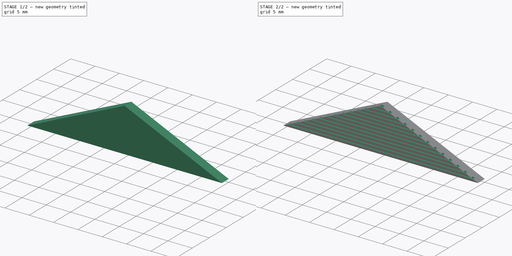
[diagram: build sequence overview — one tinted view per stage of 2, left to right]
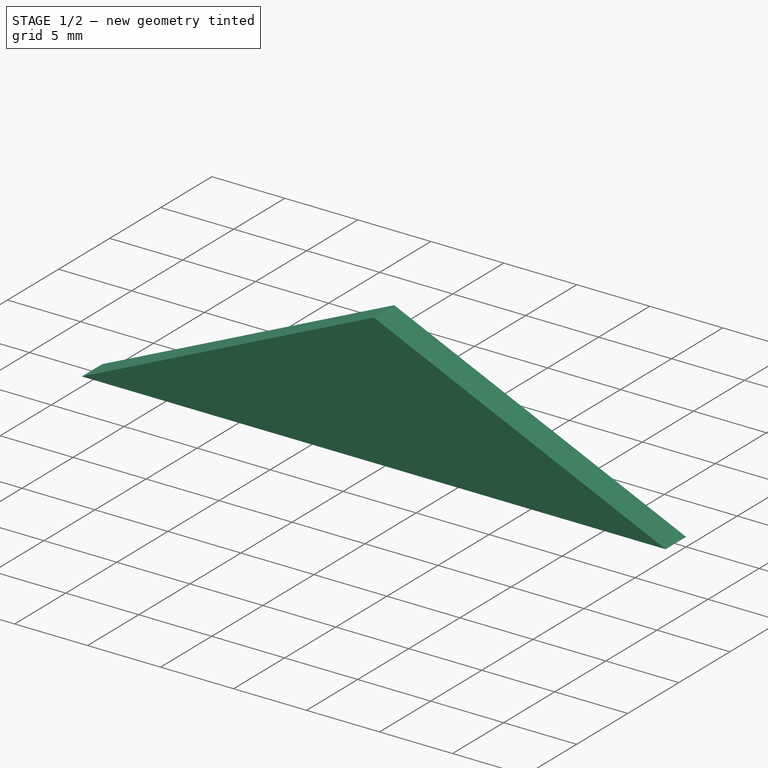
[diagram: stage 1 of 2 — iso view after this stage's code; geometry added in this stage tinted green]
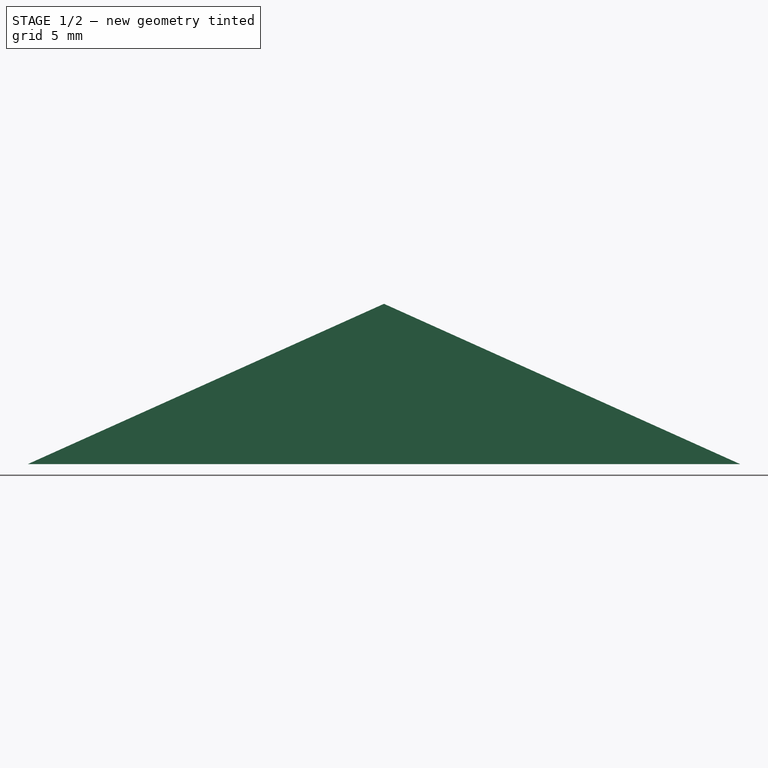
[diagram: stage 1 of 2 — front view after this stage's code; geometry added in this stage tinted green]
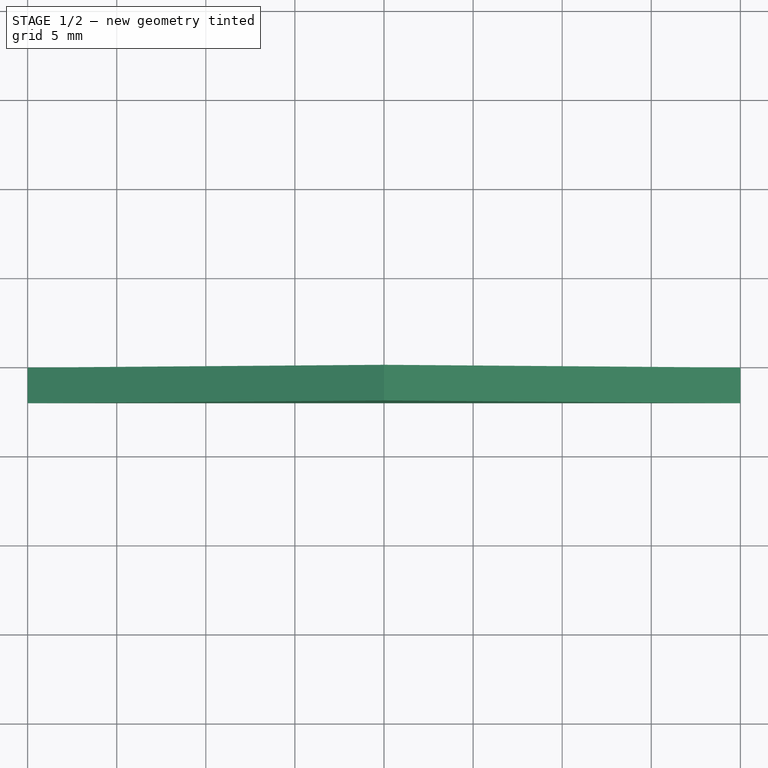
[diagram: stage 1 of 2 — top view after this stage's code; geometry added in this stage tinted green]
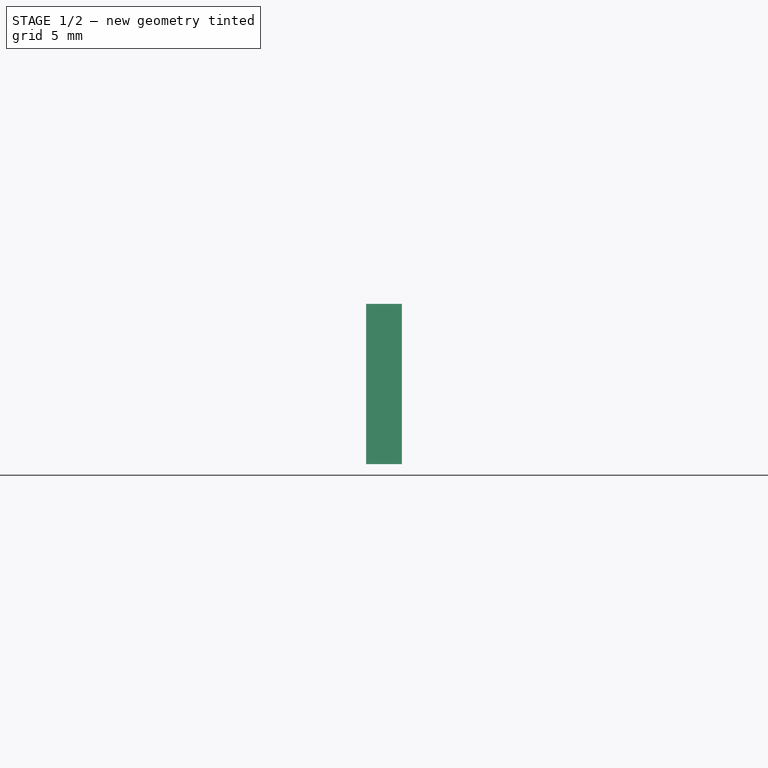
[diagram: stage 1 of 2 — right view after this stage's code; geometry added in this stage tinted green]
FCSTD DOCUMENT  (FreeCAD 0.20R29410 (Git))
Label: end_planks
License: All rights reserved
LicenseURL: http://en.wikipedia.org/wiki/All_rights_reserved
objects: Sketcher::SketchObject×2, PartDesign::Pad×1, PartDesign::Pocket×1, PartDesign::Body×1
note: 7 computed .brp shape members not serialized (recipe doc carries the construction recipe); baked Part::Feature solids carry a one-line shape summary decoded from their .brp

FEATURE [Sketcher::SketchObject] Sketch
  FullyConstrained = false
  MapMode = 5
  Placement = pos=(0,0,0) rot=(1,0,0;1.5708rad)
  Support = -> [XZ_Plane]
  sketch-geometry (5):
    g0: LineSegment StartX=-20 StartY=6.85827 StartZ=0 EndX=20 EndY=6.85827 EndZ=0
    g1: GeomPoint X=0 Y=6.85827 Z=0
    g2: LineSegment StartX=0 StartY=6.85827 StartZ=0 EndX=0 EndY=15.8583 EndZ=0
    g3: LineSegment StartX=-20 StartY=6.85827 StartZ=0 EndX=0 EndY=15.8583 EndZ=0
    g4: LineSegment StartX=0 StartY=15.8583 StartZ=0 EndX=20 EndY=6.85827 EndZ=0
  constraints (11):
    c: Horizontal(g0)
    c: DistanceX(g0,g0) = 40
    c: PointOnObject(g1,g-2)
    c: Symmetric(g0,g0,g1)
    c: Coincident(g2,g1)
    c: PointOnObject(g2,g-2)
    c: DistanceY(g2,g2) = 9
    c: Coincident(g3,g0)
    c: Coincident(g3,g2)
    c: Coincident(g4,g3)
    c: Coincident(g4,g0)
FEATURE [PartDesign::Pad] Pad
  Direction = (0,-1,-2e-16)
  Length = 2
  Length2 = 10
  Placement = pos=(0,0,0) rot=(1,0,0;1.5708rad)
  Profile = -> Sketch
  ReferenceAxis = -> Sketch [N_Axis]
  Type = 0
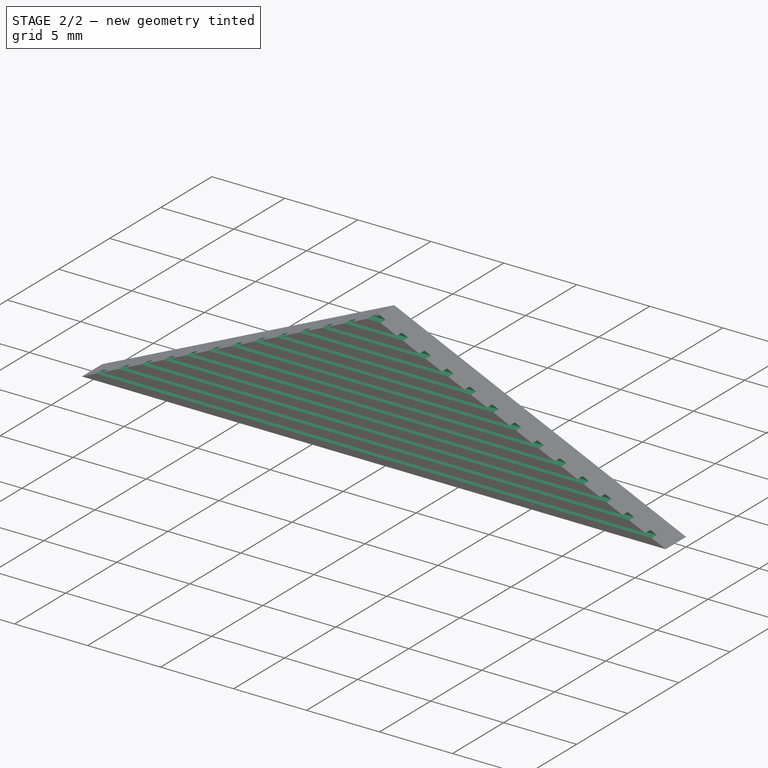
[diagram: stage 2 of 2 — iso view after this stage's code; geometry added in this stage tinted green]
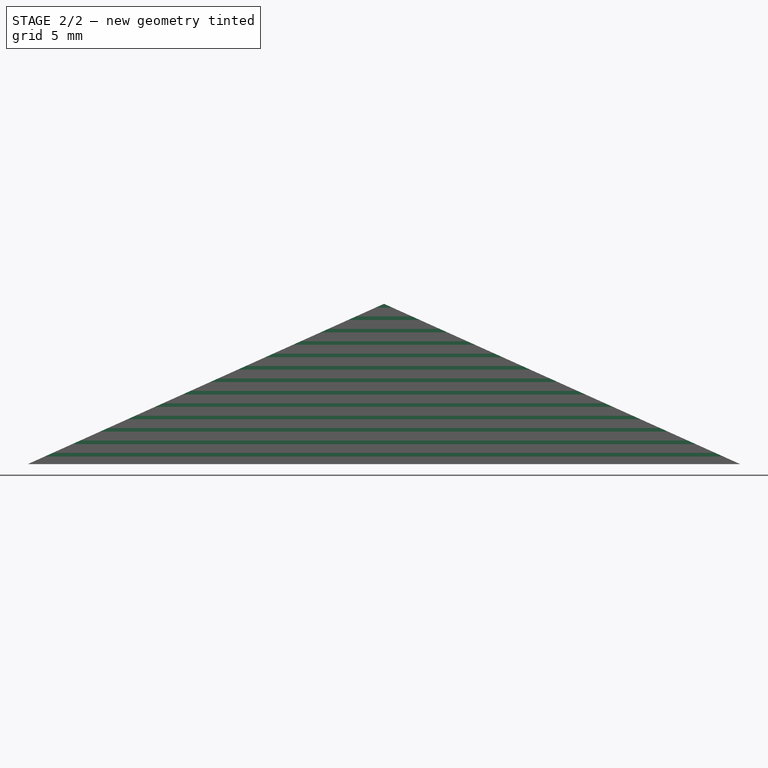
[diagram: stage 2 of 2 — front view after this stage's code; geometry added in this stage tinted green]
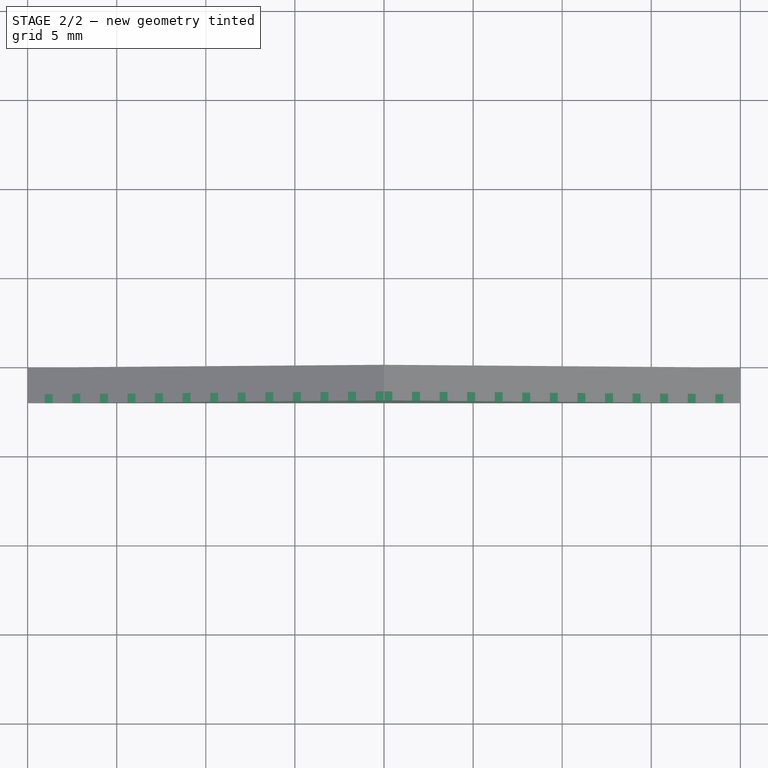
[diagram: stage 2 of 2 — top view after this stage's code; geometry added in this stage tinted green]
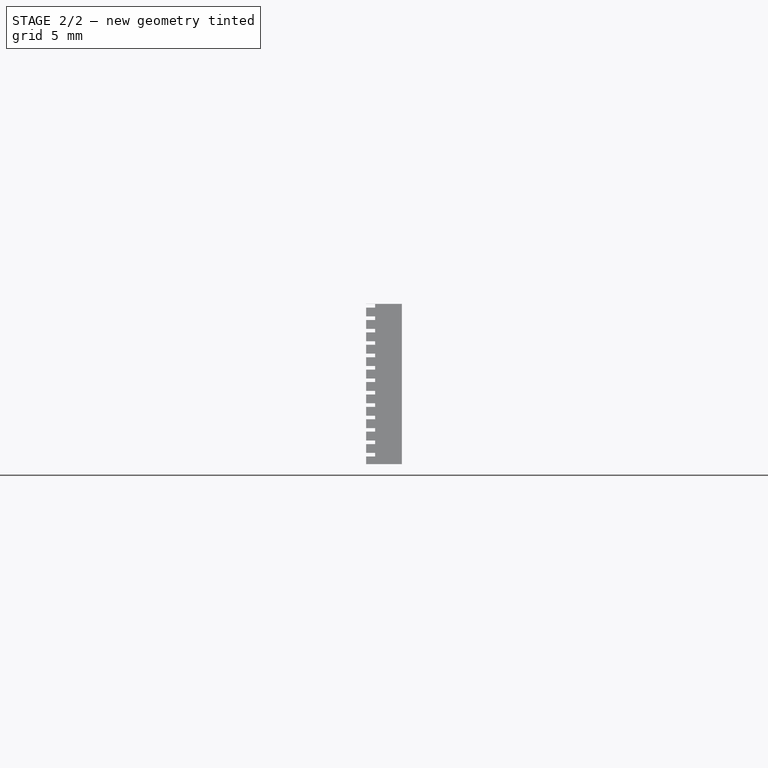
[diagram: stage 2 of 2 — right view after this stage's code; geometry added in this stage tinted green]
FEATURE [Sketcher::SketchObject] Sketch001
  FullyConstrained = false
  MapMode = 5
  Placement = pos=(0,-2,-4e-16) rot=(1,0,0;1.5708rad)
  Support = -> [Pad]
  sketch-geometry (64):
    g0: LineSegment StartX=-20.7222 StartY=7.49075 StartZ=0 EndX=21.2201 EndY=7.49075 EndZ=0
    g1: LineSegment StartX=21.2201 StartY=7.49075 StartZ=0 EndX=21.2201 EndY=7.29075 EndZ=0
    g2: LineSegment StartX=21.2201 StartY=7.29075 StartZ=0 EndX=-20.7222 EndY=7.29075 EndZ=0
    g3: LineSegment StartX=-20.7222 StartY=7.29075 StartZ=0 EndX=-20.7222 EndY=7.49075 EndZ=0
    g4: LineSegment StartX=-20.7174 StartY=8.18711 StartZ=0 EndX=21.2249 EndY=8.18711 EndZ=0
    g5: LineSegment StartX=21.2249 StartY=8.18711 StartZ=0 EndX=21.2249 EndY=7.98711 EndZ=0
    g6: LineSegment StartX=21.2249 StartY=7.98711 StartZ=0 EndX=-20.7174 EndY=7.98711 EndZ=0
    g7: LineSegment StartX=-20.7174 StartY=7.98711 StartZ=0 EndX=-20.7174 EndY=8.18711 EndZ=0
    g8: LineSegment StartX=-20.7222 StartY=7.49075 StartZ=0 EndX=-20.7174 EndY=8.18711 EndZ=0
    g9: LineSegment StartX=-20.7126 StartY=8.88346 StartZ=0 EndX=21.2297 EndY=8.88346 EndZ=0
    g10: LineSegment StartX=21.2297 StartY=8.88346 StartZ=0 EndX=21.2297 EndY=8.68346 EndZ=0
    g11: LineSegment StartX=21.2297 StartY=8.68346 StartZ=0 EndX=-20.7126 EndY=8.68346 EndZ=0
    g12: LineSegment StartX=-20.7126 StartY=8.68346 StartZ=0 EndX=-20.7126 EndY=8.88346 EndZ=0
    g13: LineSegment StartX=-20.7174 StartY=8.18711 StartZ=0 EndX=-20.7126 EndY=8.88346 EndZ=0
    g14: LineSegment StartX=-20.7079 StartY=9.57982 StartZ=0 EndX=21.2344 EndY=9.57982 EndZ=0
    g15: LineSegment StartX=21.2344 StartY=9.57982 StartZ=0 EndX=21.2344 EndY=9.37982 EndZ=0
    g16: LineSegment StartX=21.2344 StartY=9.37982 StartZ=0 EndX=-20.7079 EndY=9.37982 EndZ=0
    g17: LineSegment StartX=-20.7079 StartY=9.37982 StartZ=0 EndX=-20.7079 EndY=9.57982 EndZ=0
    g18: LineSegment StartX=-20.7126 StartY=8.88346 StartZ=0 EndX=-20.7079 EndY=9.57982 EndZ=0
    g19: LineSegment StartX=-20.7031 StartY=10.2762 StartZ=0 EndX=21.2392 EndY=10.2762 EndZ=0
    g20: LineSegment StartX=21.2392 StartY=10.2762 StartZ=0 EndX=21.2392 EndY=10.0762 EndZ=0
    g21: LineSegment StartX=21.2392 StartY=10.0762 StartZ=0 EndX=-20.7031 EndY=10.0762 EndZ=0
    g22: LineSegment StartX=-20.7031 StartY=10.0762 StartZ=0 EndX=-20.7031 EndY=10.2762 EndZ=0
    g23: LineSegment StartX=-20.7079 StartY=9.57982 StartZ=0 EndX=-20.7031 EndY=10.2762 EndZ=0
    g24: LineSegment StartX=-20.6983 StartY=10.9725 StartZ=0 EndX=21.244 EndY=10.9725 EndZ=0
    g25: LineSegment StartX=21.244 StartY=10.9725 StartZ=0 EndX=21.244 EndY=10.7725 EndZ=0
    g26: LineSegment StartX=21.244 StartY=10.7725 StartZ=0 EndX=-20.6983 EndY=10.7725 EndZ=0
    g27: LineSegment StartX=-20.6983 StartY=10.7725 StartZ=0 EndX=-20.6983 EndY=10.9725 EndZ=0
    g28: LineSegment StartX=-20.7031 StartY=10.2762 StartZ=0 EndX=-20.6983 EndY=10.9725 EndZ=0
    g29: LineSegment StartX=-20.6936 StartY=11.6689 StartZ=0 EndX=21.2487 EndY=11.6689 EndZ=0
    g30: LineSegment StartX=21.2487 StartY=11.6689 StartZ=0 EndX=21.2487 EndY=11.4689 EndZ=0
    g31: LineSegment StartX=21.2487 StartY=11.4689 StartZ=0 EndX=-20.6936 EndY=11.4689 EndZ=0
    g32: LineSegment StartX=-20.6936 StartY=11.4689 StartZ=0 EndX=-20.6936 EndY=11.6689 EndZ=0
    g33: LineSegment StartX=-20.6983 StartY=10.9725 StartZ=0 EndX=-20.6936 EndY=11.6689 EndZ=0
    g34: LineSegment StartX=-20.6888 StartY=12.3652 StartZ=0 EndX=21.2535 EndY=12.3652 EndZ=0
    g35: LineSegment StartX=21.2535 StartY=12.3652 StartZ=0 EndX=21.2535 EndY=12.1652 EndZ=0
    g36: LineSegment StartX=21.2535 StartY=12.1652 StartZ=0 EndX=-20.6888 EndY=12.1652 EndZ=0
    g37: LineSegment StartX=-20.6888 StartY=12.1652 StartZ=0 EndX=-20.6888 EndY=12.3652 EndZ=0
    g38: LineSegment StartX=-20.6936 StartY=11.6689 StartZ=0 EndX=-20.6888 EndY=12.3652 EndZ=0
    g39: LineSegment StartX=-20.684 StartY=13.0616 StartZ=0 EndX=21.2583 EndY=13.0616 EndZ=0
    g40: LineSegment StartX=21.2583 StartY=13.0616 StartZ=0 EndX=21.2583 EndY=12.8616 EndZ=0
    g41: LineSegment StartX=21.2583 StartY=12.8616 StartZ=0 EndX=-20.684 EndY=12.8616 EndZ=0
    g42: LineSegment StartX=-20.684 StartY=12.8616 StartZ=0 EndX=-20.684 EndY=13.0616 EndZ=0
    g43: LineSegment StartX=-20.6888 StartY=12.3652 StartZ=0 EndX=-20.684 EndY=13.0616 EndZ=0
    g44: LineSegment StartX=-20.6793 StartY=13.7579 StartZ=0 EndX=21.263 EndY=13.7579 EndZ=0
    g45: LineSegment StartX=21.263 StartY=13.7579 StartZ=0 EndX=21.263 EndY=13.5579 EndZ=0
    g46: LineSegment StartX=21.263 StartY=13.5579 StartZ=0 EndX=-20.6793 EndY=13.5579 EndZ=0
    g47: LineSegment StartX=-20.6793 StartY=13.5579 StartZ=0 EndX=-20.6793 EndY=13.7579 EndZ=0
    g48: LineSegment StartX=-20.684 StartY=13.0616 StartZ=0 EndX=-20.6793 EndY=13.7579 EndZ=0
    g49: LineSegment StartX=-20.6745 StartY=14.4543 StartZ=0 EndX=21.2678 EndY=14.4543 EndZ=0
    g50: LineSegment StartX=21.2678 StartY=14.4543 StartZ=0 EndX=21.2678 EndY=14.2543 EndZ=0
    g51: LineSegment StartX=21.2678 StartY=14.2543 StartZ=0 EndX=-20.6745 EndY=14.2543 EndZ=0
    g52: LineSegment StartX=-20.6745 StartY=14.2543 StartZ=0 EndX=-20.6745 EndY=14.4543 EndZ=0
    g53: LineSegment StartX=-20.6793 StartY=13.7579 StartZ=0 EndX=-20.6745 EndY=14.4543 EndZ=0
    g54: LineSegment StartX=-20.6697 StartY=15.1507 StartZ=0 EndX=21.2726 EndY=15.1507 EndZ=0
    g55: LineSegment StartX=21.2726 StartY=15.1507 StartZ=0 EndX=21.2726 EndY=14.9507 EndZ=0
    g56: LineSegment StartX=21.2726 StartY=14.9507 StartZ=0 EndX=-20.6697 EndY=14.9507 EndZ=0
    g57: LineSegment StartX=-20.6697 StartY=14.9507 StartZ=0 EndX=-20.6697 EndY=15.1507 EndZ=0
    g58: LineSegment StartX=-20.6745 StartY=14.4543 StartZ=0 EndX=-20.6697 EndY=15.1507 EndZ=0
    g59: LineSegment StartX=-20.665 StartY=15.847 StartZ=0 EndX=21.2773 EndY=15.847 EndZ=0
    g60: LineSegment StartX=21.2773 StartY=15.847 StartZ=0 EndX=21.2773 EndY=15.647 EndZ=0
    g61: LineSegment StartX=21.2773 StartY=15.647 StartZ=0 EndX=-20.665 EndY=15.647 EndZ=0
    g62: LineSegment StartX=-20.665 StartY=15.647 StartZ=0 EndX=-20.665 EndY=15.847 EndZ=0
    g63: LineSegment StartX=-20.6697 StartY=15.1507 StartZ=0 EndX=-20.665 EndY=15.847 EndZ=0
  constraints (165):
    c: Coincident(g0,g1)
    c: Coincident(g1,g2)
    c: Coincident(g2,g3)
    c: Coincident(g3,g0)
    c: Horizontal(g0)
    c: Horizontal(g2)
    c: Vertical(g1)
    c: Vertical(g3)
    c: DistanceY(g3,g3) = 0.2
    c: Coincident(g4,g5)
    c: Coincident(g5,g6)
    c: Coincident(g6,g7)
    c: Coincident(g7,g4)
    c: Horizontal(g4)
    c: Horizontal(g6)
    c: Vertical(g5)
    c: Vertical(g7)
    c: DistanceY(g7,g7) = 0.2
    c: Coincident(g0,g8)
    c: Coincident(g4,g8)
    c: Distance(g8) = 0.696371
    c: Angle(g8) = 1.56395
    c: Coincident(g9,g10)
    c: Coincident(g10,g11)
    c: Coincident(g11,g12)
    c: Coincident(g12,g9)
    c: Horizontal(g9)
    c: Horizontal(g11)
    c: Vertical(g10)
    c: Vertical(g12)
    c: DistanceY(g12,g12) = 0.2
    c: Coincident(g4,g13)
    c: Coincident(g9,g13)
    c: Equal(g8,g13)
    c: Parallel(g13,g8)
    c: Coincident(g14,g15)
    c: Coincident(g15,g16)
    c: Coincident(g16,g17)
    c: Coincident(g17,g14)
    c: Horizontal(g14)
    c: Horizontal(g16)
    c: Vertical(g15)
    c: Vertical(g17)
    c: DistanceY(g17,g17) = 0.2
    c: Coincident(g9,g18)
    c: Coincident(g14,g18)
    c: Equal(g8,g18)
    c: Parallel(g18,g8)
    c: Coincident(g19,g20)
    c: Coincident(g20,g21)
    c: Coincident(g21,g22)
    c: Coincident(g22,g19)
    c: Horizontal(g19)
    c: Horizontal(g21)
    c: Vertical(g20)
    c: Vertical(g22)
    c: DistanceY(g22,g22) = 0.2
    c: Coincident(g14,g23)
    c: Coincident(g19,g23)
    c: Equal(g8,g23)
    c: Parallel(g23,g8)
    c: Coincident(g24,g25)
    c: Coincident(g25,g26)
    c: Coincident(g26,g27)
    c: Coincident(g27,g24)
    c: Horizontal(g24)
    c: Horizontal(g26)
    c: Vertical(g25)
    c: Vertical(g27)
    c: DistanceY(g27,g27) = 0.2
    c: Coincident(g19,g28)
    c: Coincident(g24,g28)
    c: Equal(g8,g28)
    c: Parallel(g28,g8)
    c: Coincident(g29,g30)
    c: Coincident(g30,g31)
    c: Coincident(g31,g32)
    c: Coincident(g32,g29)
    c: Horizontal(g29)
    c: Horizontal(g31)
    c: Vertical(g30)
    c: Vertical(g32)
    c: DistanceY(g32,g32) = 0.2
    c: Coincident(g24,g33)
    c: Coincident(g29,g33)
    c: Equal(g8,g33)
    c: Parallel(g33,g8)
    c: Coincident(g34,g35)
    c: Coincident(g35,g36)
    c: Coincident(g36,g37)
    c: Coincident(g37,g34)
    c: Horizontal(g34)
    c: Horizontal(g36)
    c: Vertical(g35)
    c: Vertical(g37)
    c: DistanceY(g37,g37) = 0.2
    c: Coincident(g29,g38)
    c: Coincident(g34,g38)
    c: Equal(g8,g38)
    c: Parallel(g38,g8)
    c: Coincident(g39,g40)
    c: Coincident(g40,g41)
    c: Coincident(g41,g42)
    c: Coincident(g42,g39)
    c: Horizontal(g39)
    c: Horizontal(g41)
    c: Vertical(g40)
    c: Vertical(g42)
    c: DistanceY(g42,g42) = 0.2
    c: Coincident(g34,g43)
    c: Coincident(g39,g43)
    c: Equal(g8,g43)
    c: Parallel(g43,g8)
    c: Coincident(g44,g45)
    c: Coincident(g45,g46)
    c: Coincident(g46,g47)
    c: Coincident(g47,g44)
    c: Horizontal(g44)
    c: Horizontal(g46)
    c: Vertical(g45)
    c: Vertical(g47)
    c: DistanceY(g47,g47) = 0.2
    c: Coincident(g39,g48)
    c: Coincident(g44,g48)
    c: Equal(g8,g48)
    c: Parallel(g48,g8)
    c: Coincident(g49,g50)
    c: Coincident(g50,g51)
    c: Coincident(g51,g52)
    c: Coincident(g52,g49)
    c: Horizontal(g49)
    c: Horizontal(g51)
    c: Vertical(g50)
    c: Vertical(g52)
    c: DistanceY(g52,g52) = 0.2
    c: Coincident(g44,g53)
    c: Coincident(g49,g53)
    c: Equal(g8,g53)
    c: Parallel(g53,g8)
    c: Coincident(g54,g55)
    c: Coincident(g55,g56)
    c: Coincident(g56,g57)
    c: Coincident(g57,g54)
    c: Horizontal(g54)
    c: Horizontal(g56)
    c: Vertical(g55)
    c: Vertical(g57)
    c: DistanceY(g57,g57) = 0.2
    c: Coincident(g49,g58)
    c: Coincident(g54,g58)
    c: Equal(g8,g58)
    c: Parallel(g58,g8)
    c: Coincident(g59,g60)
    c: Coincident(g60,g61)
    c: Coincident(g61,g62)
    c: Coincident(g62,g59)
    c: Horizontal(g59)
    c: Horizontal(g61)
    c: Vertical(g60)
    c: Vertical(g62)
    c: DistanceY(g62,g62) = 0.2
    c: Coincident(g54,g63)
    c: Coincident(g59,g63)
    c: Equal(g8,g63)
    c: Parallel(g63,g8)
FEATURE [PartDesign::Pocket] Pocket
  BaseFeature = -> Pad
  Direction = (0,1,2e-16)
  Length = 0.5
  Length2 = 5
  Placement = pos=(0,0,0) rot=(1,0,0;1.5708rad)
  Profile = -> Sketch001
  ReferenceAxis = -> Sketch001 [N_Axis]
  Type = 0
FEATURE [PartDesign::Body] Body
  Group = -> [Sketch,Pad,Sketch001,Pocket]
  Origin = -> Origin
  Tip = -> Pocket
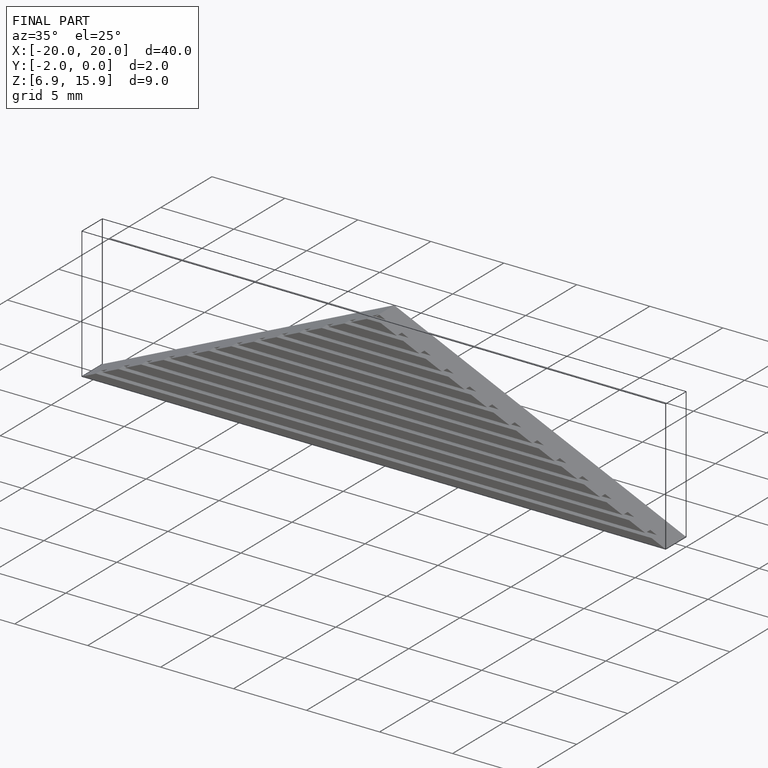
[diagram: finished part — iso view with bounding-box wireframe]
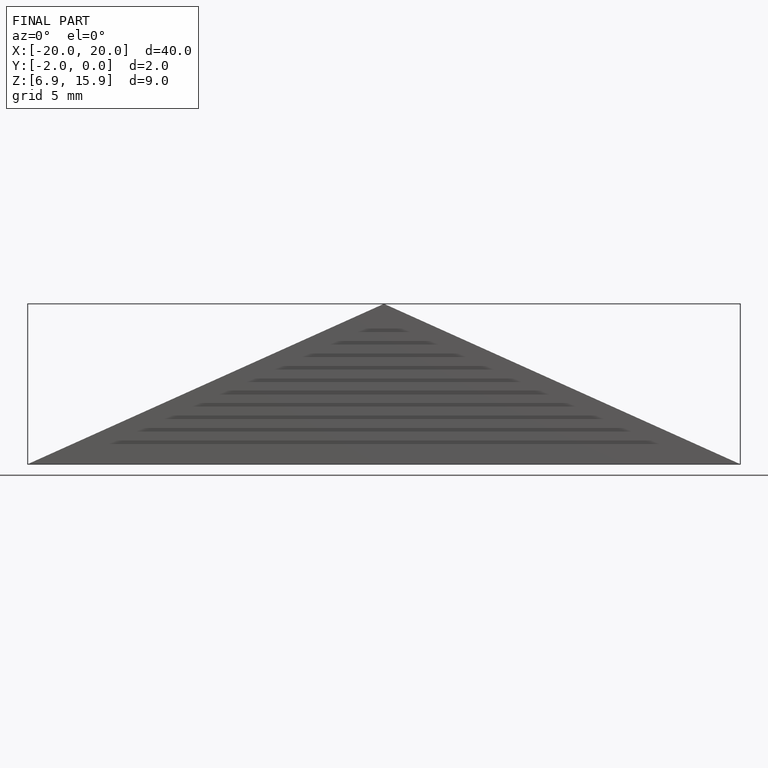
[diagram: finished part — front view with bounding-box wireframe]
